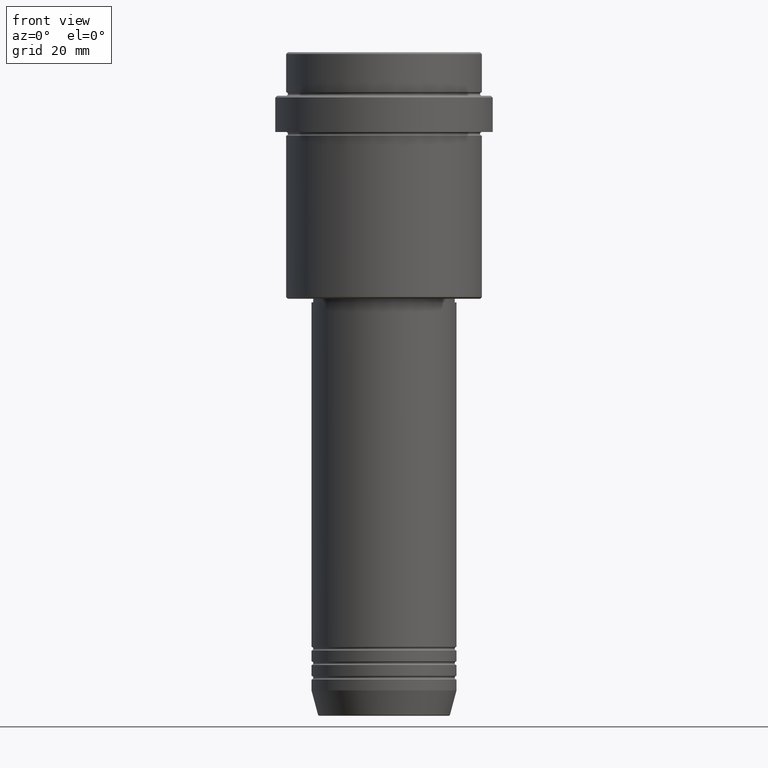
[diagram: clean part render]
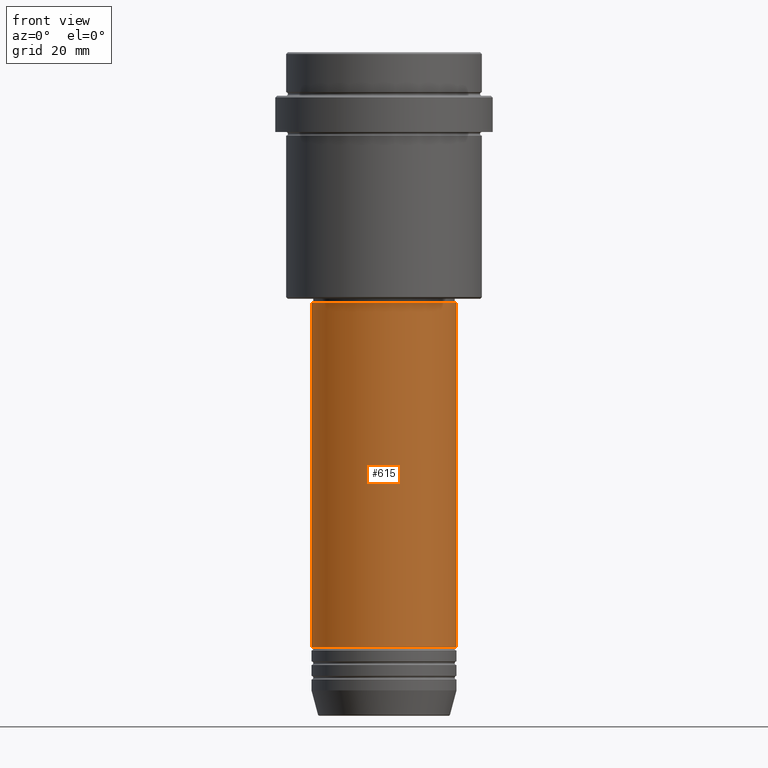
[diagram: same view with one face highlighted and labeled with its STEP entity id]
A machine part, front view. The second image highlights one B-rep face of the part: STEP entity #615.
In plain terms, the highlighted cylindrical surface (partial cylindrical patch) has radius 20 mm, axis along (-0, -0, 1).
Its self-contained STEP definition (entity closure, byte-faithful):
#24 = CARTESIAN_POINT ( 'NONE',  ( 0.000000000000000000, 0.000000000000000000, -69.00000000000000000 ) ) ;
#36 = VECTOR ( 'NONE', #1361, 1000.000000000000000 ) ;
#77 = DIRECTION ( 'NONE',  ( -0.000000000000000000, -0.000000000000000000, 1.000000000000000000 ) ) ;
#94 = CARTESIAN_POINT ( 'NONE',  ( 19.99999999999999645, 0.000000000000000000, -69.00000000000000000 ) ) ;
#177 = FACE_OUTER_BOUND ( 'NONE', #321, .T. ) ;
#205 = LINE ( 'NONE', #641, #1372 ) ;
#211 = CARTESIAN_POINT ( 'NONE',  ( 20.00000000000000000, 0.000000000000000000, -163.9999999999999147 ) ) ;
#230 = DIRECTION ( 'NONE',  ( 1.000000000000000000, 0.000000000000000000, 0.000000000000000000 ) ) ;
#247 = ORIENTED_EDGE ( 'NONE', *, *, #540, .F. ) ;
#286 = ORIENTED_EDGE ( 'NONE', *, *, #1355, .T. ) ;
#315 = DIRECTION ( 'NONE',  ( -0.000000000000000000, -0.000000000000000000, 1.000000000000000000 ) ) ;
#321 = EDGE_LOOP ( 'NONE', ( #727, #380, #286, #247 ) ) ;
#335 = AXIS2_PLACEMENT_3D ( 'NONE', #24, #315, #777 ) ;
#377 = CARTESIAN_POINT ( 'NONE',  ( -19.99999999999999645, 2.449293598294706119E-15, -69.00000000000000000 ) ) ;
#380 = ORIENTED_EDGE ( 'NONE', *, *, #855, .T. ) ;
#441 = CARTESIAN_POINT ( 'NONE',  ( 0.000000000000000000, 0.000000000000000000, -163.9999999999999147 ) ) ;
#450 = DIRECTION ( 'NONE',  ( -0.000000000000000000, -0.000000000000000000, 1.000000000000000000 ) ) ;
#480 = LINE ( 'NONE', #1292, #36 ) ;
#540 = EDGE_CURVE ( 'NONE', #797, #976, #1144, .T. ) ;
#608 = CYLINDRICAL_SURFACE ( 'NONE', #1005, 19.99999999999999645 ) ;
#615 = ADVANCED_FACE ( 'NONE', ( #177 ), #608, .T. ) ;
#641 = CARTESIAN_POINT ( 'NONE',  ( -19.99999999999999645, 2.449293598294706119E-15, 0.000000000000000000 ) ) ;
#727 = ORIENTED_EDGE ( 'NONE', *, *, #968, .F. ) ;
#735 = AXIS2_PLACEMENT_3D ( 'NONE', #441, #450, #230 ) ;
#777 = DIRECTION ( 'NONE',  ( 1.000000000000000000, 0.000000000000000000, 0.000000000000000000 ) ) ;
#797 = VERTEX_POINT ( 'NONE', #377 ) ;
#820 = VERTEX_POINT ( 'NONE', #211 ) ;
#855 = EDGE_CURVE ( 'NONE', #864, #820, #1251, .T. ) ;
#864 = VERTEX_POINT ( 'NONE', #1114 ) ;
#956 = DIRECTION ( 'NONE',  ( 1.000000000000000000, 0.000000000000000000, 0.000000000000000000 ) ) ;
#968 = EDGE_CURVE ( 'NONE', #864, #797, #205, .T. ) ;
#976 = VERTEX_POINT ( 'NONE', #94 ) ;
#1005 = AXIS2_PLACEMENT_3D ( 'NONE', #1066, #77, #956 ) ;
#1066 = CARTESIAN_POINT ( 'NONE',  ( 0.000000000000000000, 0.000000000000000000, 0.000000000000000000 ) ) ;
#1089 = DIRECTION ( 'NONE',  ( -0.000000000000000000, -0.000000000000000000, 1.000000000000000000 ) ) ;
#1114 = CARTESIAN_POINT ( 'NONE',  ( -20.00000000000000000, 2.449293598294706513E-15, -163.9999999999999147 ) ) ;
#1144 = CIRCLE ( 'NONE', #335, 19.99999999999999645 ) ;
#1251 = CIRCLE ( 'NONE', #735, 20.00000000000000000 ) ;
#1292 = CARTESIAN_POINT ( 'NONE',  ( 19.99999999999999645, 0.000000000000000000, 0.000000000000000000 ) ) ;
#1355 = EDGE_CURVE ( 'NONE', #820, #976, #480, .T. ) ;
#1361 = DIRECTION ( 'NONE',  ( -0.000000000000000000, -0.000000000000000000, 1.000000000000000000 ) ) ;
#1372 = VECTOR ( 'NONE', #1089, 1000.000000000000000 ) ;